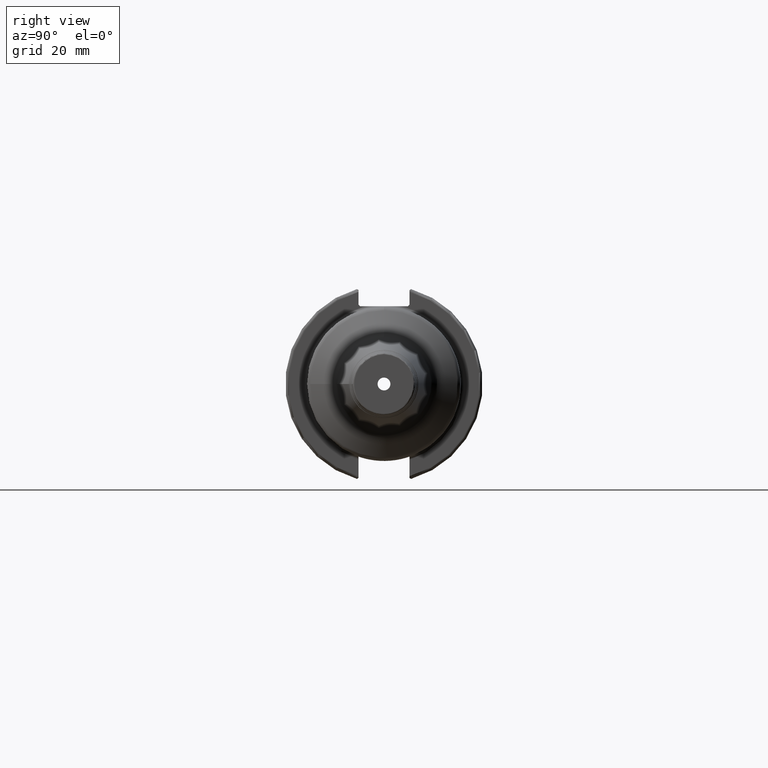
[diagram: clean part render]
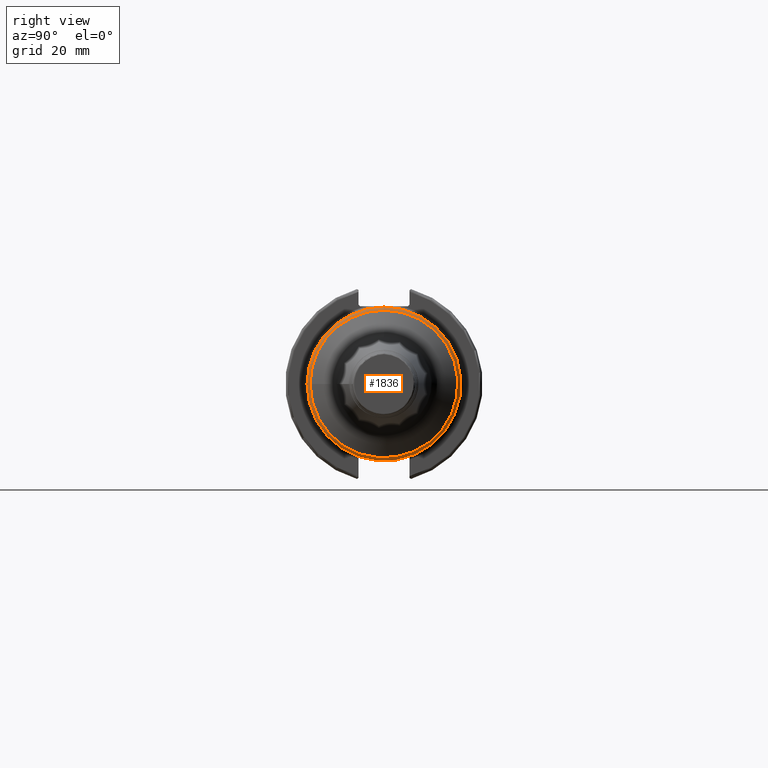
[diagram: same view with one face highlighted and labeled with its STEP entity id]
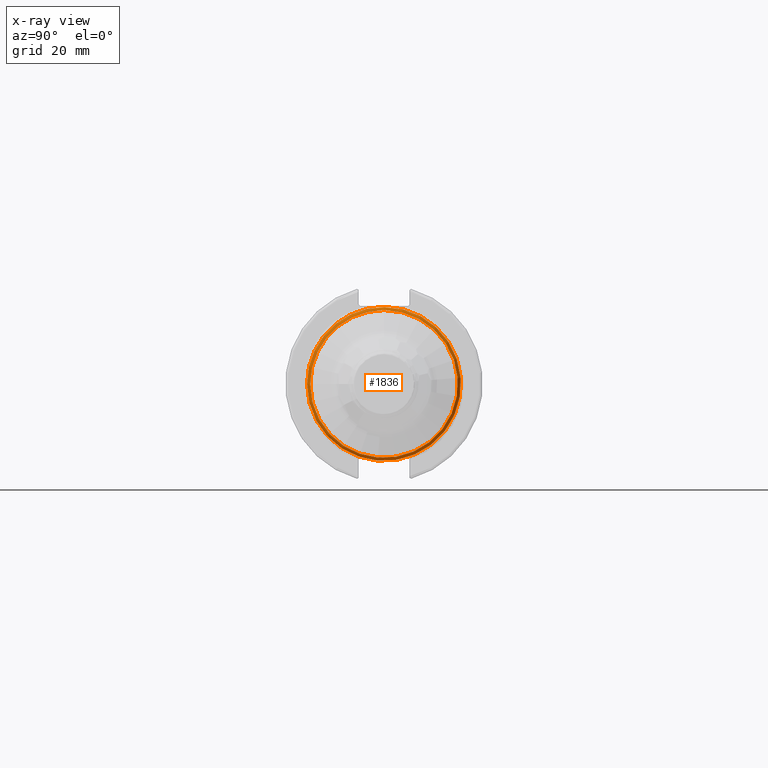
[diagram: x-ray of the same camera — body ghosted, the highlighted face saturated]
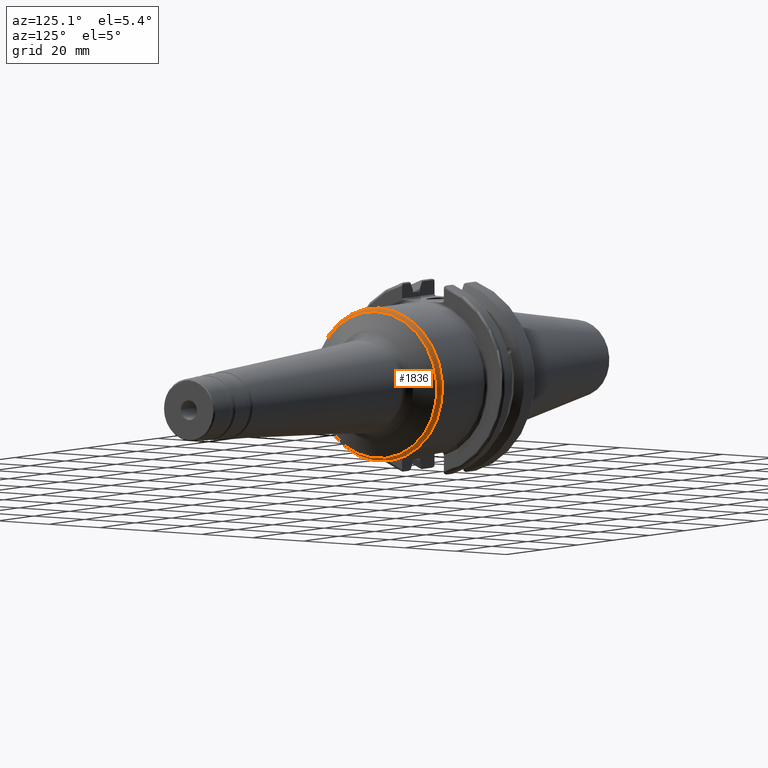
[diagram: same view with one face highlighted and labeled with its STEP entity id]
A machine part, right view. The second image highlights one B-rep face of the part: STEP entity #1836.
The next image is the same camera in x-ray: the body ghosted, the highlighted face saturated — about 0% of this face is hidden behind the body in this view.
A second angle (auxiliary view) of the same face is appended — the face is thin or edge-on in the first view.
In plain terms, the highlighted toroidal blend (fillet) surface has major radius 22.75 mm and minor (blend) radius 2 mm.
Its self-contained STEP definition (entity closure, byte-faithful):
#85=TOROIDAL_SURFACE('',#1978,22.75,2.);
#191=FACE_OUTER_BOUND('',#300,.T.);
#300=EDGE_LOOP('',(#1257,#1258,#1259,#1260,#1261,#1262));
#617=CIRCLE('',#1974,24.75);
#620=CIRCLE('',#1977,24.75);
#621=CIRCLE('',#1979,23.75);
#622=CIRCLE('',#1980,23.75);
#623=CIRCLE('',#1981,2.);
#749=VERTEX_POINT('',#2937);
#750=VERTEX_POINT('',#2938);
#752=VERTEX_POINT('',#2946);
#753=VERTEX_POINT('',#2947);
#947=EDGE_CURVE('',#749,#750,#617,.T.);
#951=EDGE_CURVE('',#750,#749,#620,.T.);
#952=EDGE_CURVE('',#752,#753,#621,.T.);
#953=EDGE_CURVE('',#753,#752,#622,.T.);
#954=EDGE_CURVE('',#752,#750,#623,.T.);
#1257=ORIENTED_EDGE('',*,*,#952,.T.);
#1258=ORIENTED_EDGE('',*,*,#953,.T.);
#1259=ORIENTED_EDGE('',*,*,#954,.T.);
#1260=ORIENTED_EDGE('',*,*,#951,.T.);
#1261=ORIENTED_EDGE('',*,*,#947,.T.);
#1262=ORIENTED_EDGE('',*,*,#954,.F.);
#1836=ADVANCED_FACE('',(#191),#85,.T.);
#1974=AXIS2_PLACEMENT_3D('',#2939,#2248,#2249);
#1977=AXIS2_PLACEMENT_3D('',#2944,#2255,#2256);
#1978=AXIS2_PLACEMENT_3D('',#2945,#2257,#2258);
#1979=AXIS2_PLACEMENT_3D('',#2948,#2259,#2260);
#1980=AXIS2_PLACEMENT_3D('',#2949,#2261,#2262);
#1981=AXIS2_PLACEMENT_3D('',#2950,#2263,#2264);
#2248=DIRECTION('center_axis',(1.,0.,0.));
#2249=DIRECTION('ref_axis',(0.,-1.,1.83697019872103E-16));
#2255=DIRECTION('center_axis',(1.,0.,0.));
#2256=DIRECTION('ref_axis',(0.,-1.,1.83697019872103E-16));
#2257=DIRECTION('center_axis',(1.,0.,0.));
#2258=DIRECTION('ref_axis',(0.,0.,-1.));
#2259=DIRECTION('center_axis',(-1.,0.,0.));
#2260=DIRECTION('ref_axis',(0.,-1.,3.06161699786838E-17));
#2261=DIRECTION('center_axis',(-1.,0.,0.));
#2262=DIRECTION('ref_axis',(0.,-1.,3.06161699786838E-17));
#2263=DIRECTION('center_axis',(0.,-1.,-1.22464679914735E-16));
#2264=DIRECTION('ref_axis',(0.,-1.22464679914735E-16,1.));
#2937=CARTESIAN_POINT('',(43.3551475387432,-24.75,-3.0310008278897E-15));
#2938=CARTESIAN_POINT('',(43.3551475387432,-3.0310008278897E-15,24.75));
#2939=CARTESIAN_POINT('Origin',(43.3551475387432,0.,0.));
#2944=CARTESIAN_POINT('Origin',(43.3551475387432,0.,0.));
#2945=CARTESIAN_POINT('Origin',(43.3551475387432,0.,0.));
#2946=CARTESIAN_POINT('',(45.0871983463121,-2.90853614797496E-15,23.75));
#2947=CARTESIAN_POINT('',(45.087198346312,-23.75,-2.90853614797497E-15));
#2948=CARTESIAN_POINT('Origin',(45.0871983463121,0.,-3.63567018496871E-15));
#2949=CARTESIAN_POINT('Origin',(45.0871983463121,0.,-3.63567018496871E-15));
#2950=CARTESIAN_POINT('Origin',(43.3551475387432,-2.78607146806023E-15,
22.75));